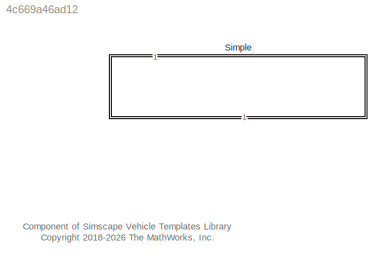
MODEL slx_4c669a46ad12
KIND library
CONFIG SolverName = VariableStepAuto
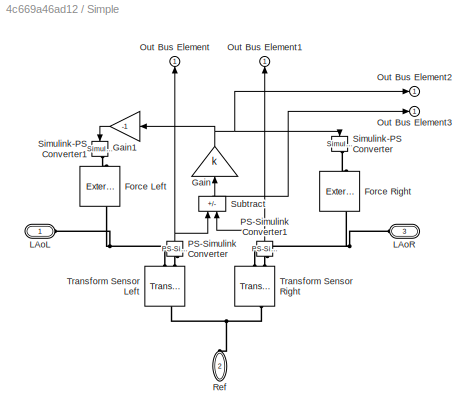
BLOCK [SubSystem] Simple
  NameLocation = left
  VariantControl = Variant1
BLOCK [Reference] Simple/Force Left  REF=sm_lib/Forces and
Torques/External Force
and Torque
  NameLocation = left
  SourceBlock = sm_lib/Forces and\nTorques/External Force\nand Torque
  SourceType = External Force\nand Torque
BLOCK [Reference] Simple/Force Right  REF=sm_lib/Forces and
Torques/External Force
and Torque
  NameLocation = right
  SourceBlock = sm_lib/Forces and\nTorques/External Force\nand Torque
  SourceType = External Force\nand Torque
BLOCK [Gain] Simple/Gain
  Gain = k
  NameLocation = right
BLOCK [Gain] Simple/Gain1
  Gain = -1
BLOCK [PMIOPort] Simple/LAoL
  Side = Left
BLOCK [PMIOPort] Simple/LAoR
  Port = 3
  Side = Left
BLOCK [Outport] Simple/Out Bus Element
  NameLocation = right
  VectorParamsAs1DForOutWhenUnconnected = off
BLOCK [Outport] Simple/Out Bus Element1
  NameLocation = right
  VectorParamsAs1DForOutWhenUnconnected = off
BLOCK [Outport] Simple/Out Bus Element2
  NameLocation = top
  VectorParamsAs1DForOutWhenUnconnected = off
BLOCK [Outport] Simple/Out Bus Element3
  NameLocation = top
  VectorParamsAs1DForOutWhenUnconnected = off
BLOCK [Reference] Simple/PS-Simulink Converter  REF=nesl_utility/PS-Simulink
Converter
  NameLocation = right
  SourceBlock = nesl_utility/PS-Simulink\nConverter
  SourceType = PS-Simulink\nConverter
BLOCK [Reference] Simple/PS-Simulink Converter1  REF=nesl_utility/PS-Simulink
Converter
  NameLocation = right
  SourceBlock = nesl_utility/PS-Simulink\nConverter
  SourceType = PS-Simulink\nConverter
BLOCK [PMIOPort] Simple/Ref
  NameLocation = left
  Port = 2
  Side = Left
BLOCK [Reference] Simple/Simulink-PS Converter  REF=nesl_utility/Simulink-PS
Converter
  NameLocation = left
  SourceBlock = nesl_utility/Simulink-PS\nConverter
  SourceType = Simulink-PS\nConverter
BLOCK [Reference] Simple/Simulink-PS Converter1  REF=nesl_utility/Simulink-PS
Converter
  NameLocation = left
  SourceBlock = nesl_utility/Simulink-PS\nConverter
  SourceType = Simulink-PS\nConverter
BLOCK [Sum] Simple/Subtract
  IconShape = rectangular
  Inputs = +-
  NameLocation = right
BLOCK [Reference] Simple/Transform Sensor Left  REF=sm_lib/Frames and
Transforms/Transform
Sensor
  NameLocation = left
  SourceBlock = sm_lib/Frames and\nTransforms/Transform\nSensor
  SourceType = Transform\nSensor
BLOCK [Reference] Simple/Transform Sensor Right  REF=sm_lib/Frames and
Transforms/Transform
Sensor
  NameLocation = right
  SourceBlock = sm_lib/Frames and\nTransforms/Transform\nSensor
  SourceType = Transform\nSensor
ANNOTATION (root): Component of Simscape Vehicle Templates Library <copyright redacted>
LINE Simple/Gain1:1 -> Simple/Simulink-PS Converter1:1
NET Simple/Gain:1 -> Simple/Gain1:1, Simple/Out Bus Element2:1, Simple/Simulink-PS Converter:1
NET Simple/PS-Simulink Converter1:1 -> Simple/Out Bus Element1:1, Simple/Subtract:2
NET Simple/PS-Simulink Converter:1 -> Simple/Out Bus Element:1, Simple/Subtract:1
NET Simple/Subtract:1 -> Simple/Gain:1, Simple/Out Bus Element3:1
PLINE Simple/Force Left:LConn1 -- Simple/Simulink-PS Converter1:RConn1
PNET net1: Simple/Force Left:RConn1 -- Simple/LAoL:RConn1 -- Simple/Transform Sensor Left:RConn1
PLINE Simple/Force Right:LConn1 -- Simple/Simulink-PS Converter:RConn1
PNET net2: Simple/Force Right:RConn1 -- Simple/LAoR:RConn1 -- Simple/Transform Sensor Right:RConn1
PLINE Simple/PS-Simulink Converter1:LConn1 -- Simple/Transform Sensor Right:RConn2
PLINE Simple/PS-Simulink Converter:LConn1 -- Simple/Transform Sensor Left:RConn2
PNET net3: Simple/Ref:RConn1 -- Simple/Transform Sensor Left:LConn1 -- Simple/Transform Sensor Right:LConn1
note: NET lines group one-source signal fan-out (src -> all destinations, sorted); 1:1 wires keep LINE; PNET lines group multi-terminal physical nets as a canonical sorted terminal list (undirected conserving connections); 2-terminal nets keep the pairwise PLINE form
